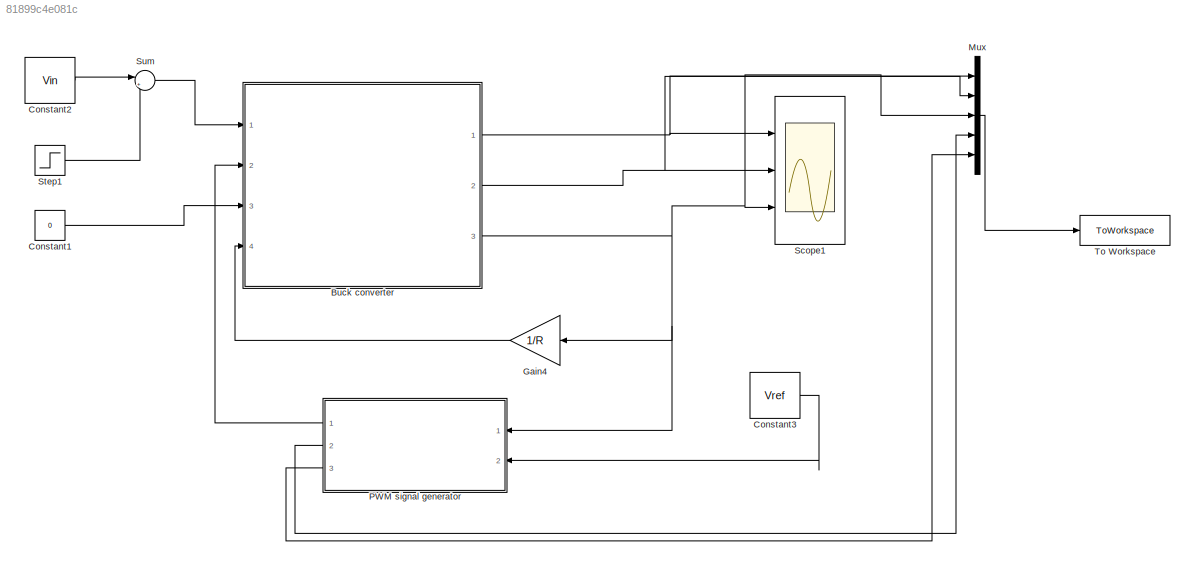
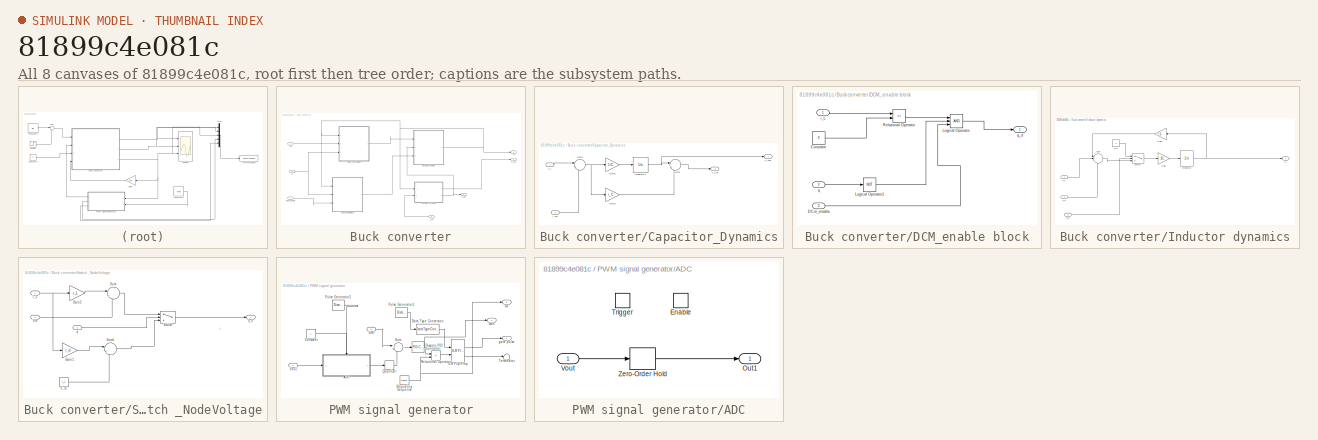
[diagram: thumbnail index - all 8 canvases of the model, root first then tree order]
MODEL slx_81899c4e081c
KIND model
CONFIG AbsTol = auto
CONFIG EnableMultiTasking = off
CONFIG FixedStep = auto
CONFIG MaxStep = 1e-6
CONFIG MinStep = auto
CONFIG RelTol = 1e-12
CONFIG SampleTimeConstraint = Unconstrained
CONFIG SolverName = ode23t
CONFIG StartTime = 0.0
CONFIG StopTime = t_sim
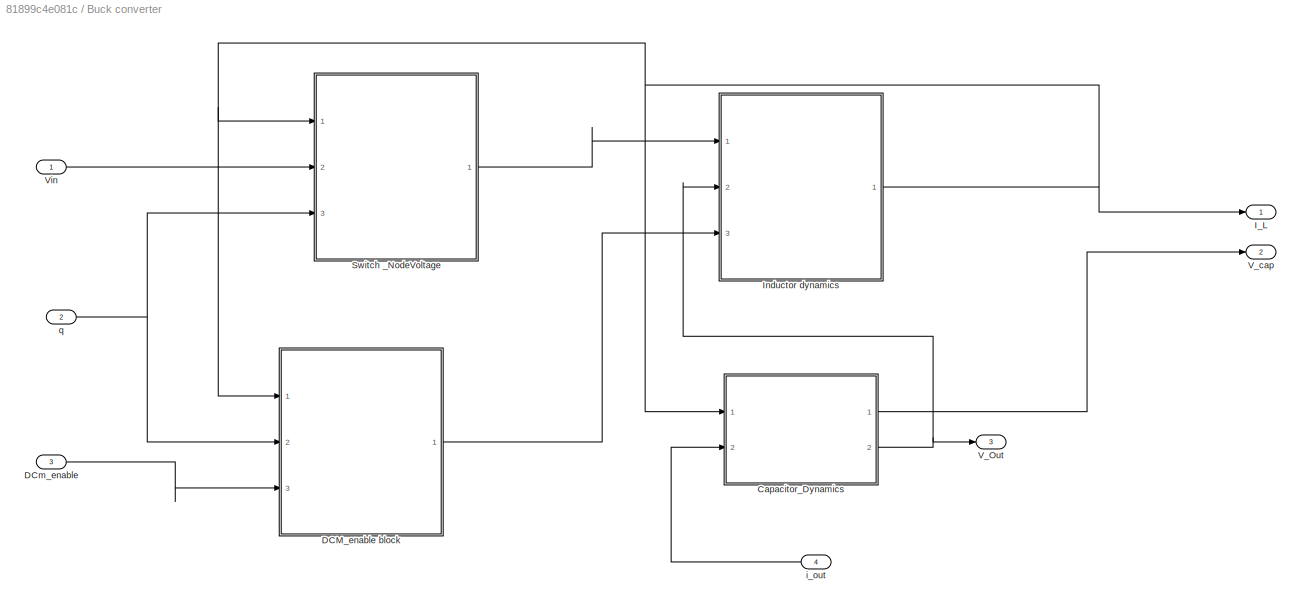
BLOCK [SubSystem] Buck converter
  Ports = [4, 3]
  RequestExecContextInheritance = off
BLOCK [SubSystem] Buck converter/Capacitor_Dynamics
  Ports = [2, 2]
  RequestExecContextInheritance = off
BLOCK [Gain] Buck converter/Capacitor_Dynamics/Gain2
  Gain = 1/C
BLOCK [Gain] Buck converter/Capacitor_Dynamics/Gain3
  Gain = r_C
BLOCK [Integrator] Buck converter/Capacitor_Dynamics/Integrator1
  InitialCondition = V_C_int
  Ports = [1, 1]
BLOCK [Sum] Buck converter/Capacitor_Dynamics/Sum1
  Inputs = |+-
  Ports = [2, 1]
BLOCK [Sum] Buck converter/Capacitor_Dynamics/Sum2
  Inputs = |++
  Ports = [2, 1]
BLOCK [Outport] Buck converter/Capacitor_Dynamics/V_Out
  Port = 2
BLOCK [Outport] Buck converter/Capacitor_Dynamics/V_cap
BLOCK [Inport] Buck converter/Capacitor_Dynamics/i_L
BLOCK [Inport] Buck converter/Capacitor_Dynamics/i_out
  NameLocation = top
  Port = 2
BLOCK [SubSystem] Buck converter/DCM_enable block
  Ports = [3, 1]
  RequestExecContextInheritance = off
BLOCK [Constant] Buck converter/DCM_enable block/Constant
  Value = 0
BLOCK [Inport] Buck converter/DCM_enable block/DCm_enable
  Port = 3
BLOCK [Logic] Buck converter/DCM_enable block/Logical Operator
  AllPortsSameDT = off
  Inputs = 3
  OutDataTypeStr = boolean
  Ports = [3, 1]
BLOCK [Logic] Buck converter/DCM_enable block/Logical Operator1
  AllPortsSameDT = off
  Inputs = 3
  Operator = NOT
  OutDataTypeStr = boolean
  Ports = [1, 1]
BLOCK [RelationalOperator] Buck converter/DCM_enable block/Relational Operator
  InputSameDT = off
  Operator = <=
  OutDataTypeStr = boolean
  Ports = [2, 1]
  RndMeth = Simplest
BLOCK [Inport] Buck converter/DCM_enable block/i_L
BLOCK [Inport] Buck converter/DCM_enable block/q
  Port = 2
BLOCK [Outport] Buck converter/DCM_enable block/q_d
BLOCK [Inport] Buck converter/DCm_enable
  Port = 3
BLOCK [Outport] Buck converter/I_L
BLOCK [SubSystem] Buck converter/Inductor dynamics
  Ports = [3, 1]
  RequestExecContextInheritance = off
BLOCK [Gain] Buck converter/Inductor dynamics/Gain
  Gain = 1/L
BLOCK [Gain] Buck converter/Inductor dynamics/Gain1
  Gain = r_L
  NameLocation = top
BLOCK [Outport] Buck converter/Inductor dynamics/I_L
BLOCK [Integrator] Buck converter/Inductor dynamics/Integrato
  InitialCondition = I_L_int
  Ports = [1, 1]
BLOCK [Sum] Buck converter/Inductor dynamics/Sum
  Inputs = |-+-
  Ports = [3, 1]
BLOCK [Switch] Buck converter/Inductor dynamics/Switch
  Criteria = u2 > Threshold
  InputSameDT = off
  SaturateOnIntegerOverflow = off
  Threshold = 0.5
BLOCK [Inport] Buck converter/Inductor dynamics/V_o
  Port = 2
BLOCK [Inport] Buck converter/Inductor dynamics/V_x
BLOCK [Constant] Buck converter/Inductor dynamics/V_x1
  Value = 0
BLOCK [Inport] Buck converter/Inductor dynamics/q_D
  Port = 3
BLOCK [SubSystem] Buck converter/Switch _NodeVoltage
  Ports = [3, 1]
  RequestExecContextInheritance = off
BLOCK [Gain] Buck converter/Switch _NodeVoltage/Gain1
  Gain = r_d
BLOCK [Gain] Buck converter/Switch _NodeVoltage/Gain2
  Gain = r_L
BLOCK [Sum] Buck converter/Switch _NodeVoltage/Sum
  Inputs = |-+
  Ports = [2, 1]
BLOCK [Sum] Buck converter/Switch _NodeVoltage/Sum1
  Inputs = |+-
  Ports = [2, 1]
BLOCK [Switch] Buck converter/Switch _NodeVoltage/Switch
  Criteria = u2 > Threshold
  InputSameDT = off
  SaturateOnIntegerOverflow = off
  Threshold = 0.5
BLOCK [Constant] Buck converter/Switch _NodeVoltage/V_x1
  Value = V_d
BLOCK [Inport] Buck converter/Switch _NodeVoltage/Vin
  Port = 2
BLOCK [Inport] Buck converter/Switch _NodeVoltage/i_L
BLOCK [Inport] Buck converter/Switch _NodeVoltage/q
  Port = 3
BLOCK [Outport] Buck converter/Switch _NodeVoltage/v_x
BLOCK [Outport] Buck converter/V_Out
  Port = 3
BLOCK [Outport] Buck converter/V_cap
  Port = 2
BLOCK [Inport] Buck converter/Vin
BLOCK [Inport] Buck converter/i_out
  Port = 4
BLOCK [Inport] Buck converter/q
  Port = 2
BLOCK [Constant] Constant1
  Value = 0
BLOCK [Constant] Constant2
  Value = Vin
BLOCK [Constant] Constant3
  Value = Vref
BLOCK [Gain] Gain4
  Gain = 1/R
  NameLocation = top
BLOCK [Mux] Mux
  DisplayOption = bar
  Inputs = 5
  Ports = [5, 1]
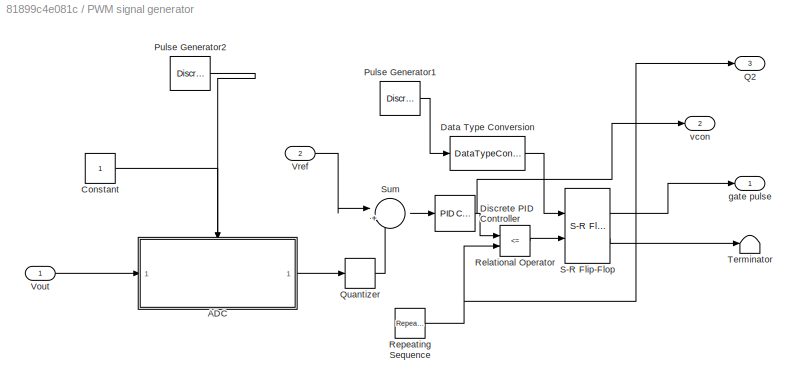
BLOCK [SubSystem] PWM signal generator
  Ports = [2, 3]
  RequestExecContextInheritance = off
BLOCK [SubSystem] PWM signal generator/ADC
  Ports = [1, 1, 1, 1]
  RequestExecContextInheritance = off
  TreatAsAtomicUnit = on
BLOCK [EnablePort] PWM signal generator/ADC/Enable
  Ports = []
BLOCK [Outport] PWM signal generator/ADC/Out1
BLOCK [TriggerPort] PWM signal generator/ADC/Trigger
  Ports = []
  StatesWhenEnabling = held
  VariantControl = (inherit)
BLOCK [Inport] PWM signal generator/ADC/Vout
BLOCK [ZeroOrderHold] PWM signal generator/ADC/Zero-Order Hold
  SampleTime = -1
BLOCK [Constant] PWM signal generator/Constant
BLOCK [DataTypeConversion] PWM signal generator/Data Type Conversion
  OutMax = [1]
  OutMin = [0]
  RndMeth = Floor
  SaturateOnIntegerOverflow = off
BLOCK [Reference] PWM signal generator/Discrete PID Controller  REF=slpidlib/PID Controller
  Ports = [1, 1]
  SourceBlock = slpidlib/PID Controller
  SourceProductBaseCode = SL
  SourceType = PID 1dof
BLOCK [DiscretePulseGenerator] PWM signal generator/Pulse Generator1
  Period = T
  Ports = [0, 1]
  PulseType = Time based
  PulseWidth = 50
BLOCK [DiscretePulseGenerator] PWM signal generator/Pulse Generator2
  Period = T
  Ports = [0, 1]
  PulseType = Time based
  PulseWidth = 50
BLOCK [Outport] PWM signal generator/Q2
  Port = 3
BLOCK [Quantizer] PWM signal generator/Quantizer
  QuantizationInterval = 0.001
BLOCK [RelationalOperator] PWM signal generator/Relational Operator
  InputSameDT = off
  Operator = <=
  OutDataTypeStr = boolean
  Ports = [2, 1]
  RndMeth = Simplest
BLOCK [Reference] PWM signal generator/Repeating Sequence  REF=simulink/Sources/Repeating
Sequence
  Ports = [0, 1]
  SourceBlock = simulink/Sources/Repeating\nSequence
  SourceProductBaseCode = SL
  SourceType = Repeating table
BLOCK [Reference] PWM signal generator/S-R Flip-Flop  REF=simulink_extras/Flip Flops/S-R
Flip-Flop
  Ports = [2, 2]
  SourceBlock = simulink_extras/Flip Flops/S-R\nFlip-Flop
  SourceProductBaseCode = SL
  SourceType = SRFlipFlop
BLOCK [Sum] PWM signal generator/Sum
  Inputs = |+-
  Ports = [2, 1]
BLOCK [Terminator] PWM signal generator/Terminator
BLOCK [Inport] PWM signal generator/Vout
BLOCK [Inport] PWM signal generator/Vref
  NameLocation = top
  Port = 2
BLOCK [Outport] PWM signal generator/gate pulse
BLOCK [Outport] PWM signal generator/vcon
  Port = 2
BLOCK [Scope] Scope1
  Floating = off
  NumInputPorts = 3
  Ports = [3]
  ScopeSpecificationString = Simulink.scopes.TimeScopeBlockCfg('CurrentConfiguration', extmgr.ConfigurationSet(extmgr.Configuration('Core','General UI',true),extmgr.Configuration('Core','Source UI',true),extmgr.Configuration('Sources','WiredSimulink',true,'DataLogging',true,'DataLoggingSaveFormat','StructureWithTime'),extmgr.Configuration('Visuals','Time Domain',true,'SerializedDisplays',{struct('MinYLimReal','-49.12881','Max...<+3376ch>
BLOCK [Step] Step1
  After = -4
  SampleTime = 0
  Time = 5
BLOCK [Sum] Sum
  Inputs = |++
  Ports = [2, 1]
BLOCK [ToWorkspace] To Workspace
  FixptAsFi = on
  MaxDataPoints = inf
  Ports = [1]
  SampleTime = -1
  SaveFormat = Structure With Time
  VariableName = buck_result
ANNOTATION Buck converter/Inductor dynamics: r
ANNOTATION Buck converter/Switch _NodeVoltage: r
LINE Buck converter/Capacitor_Dynamics/Gain2:1 -> Buck converter/Capacitor_Dynamics/Integrator1:1
LINE Buck converter/Capacitor_Dynamics/Gain3:1 -> Buck converter/Capacitor_Dynamics/Sum2:2
NET Buck converter/Capacitor_Dynamics/Integrator1:1 -> Buck converter/Capacitor_Dynamics/Sum2:1, Buck converter/Capacitor_Dynamics/V_cap:1
NET Buck converter/Capacitor_Dynamics/Sum1:1 -> Buck converter/Capacitor_Dynamics/Gain2:1, Buck converter/Capacitor_Dynamics/Gain3:1
LINE Buck converter/Capacitor_Dynamics/Sum2:1 -> Buck converter/Capacitor_Dynamics/V_Out:1
LINE Buck converter/Capacitor_Dynamics/i_L:1 -> Buck converter/Capacitor_Dynamics/Sum1:1
LINE Buck converter/Capacitor_Dynamics/i_out:1 -> Buck converter/Capacitor_Dynamics/Sum1:2
LINE Buck converter/Capacitor_Dynamics:1 -> Buck converter/V_cap:1
NET Buck converter/Capacitor_Dynamics:2 -> Buck converter/Inductor dynamics:2, Buck converter/V_Out:1
LINE Buck converter/DCM_enable block/Constant:1 -> Buck converter/DCM_enable block/Relational Operator:2
LINE Buck converter/DCM_enable block/DCm_enable:1 -> Buck converter/DCM_enable block/Logical Operator:3
LINE Buck converter/DCM_enable block/Logical Operator1:1 -> Buck converter/DCM_enable block/Logical Operator:2
LINE Buck converter/DCM_enable block/Logical Operator:1 -> Buck converter/DCM_enable block/q_d:1
LINE Buck converter/DCM_enable block/Relational Operator:1 -> Buck converter/DCM_enable block/Logical Operator:1
LINE Buck converter/DCM_enable block/i_L:1 -> Buck converter/DCM_enable block/Relational Operator:1
LINE Buck converter/DCM_enable block/q:1 -> Buck converter/DCM_enable block/Logical Operator1:1
LINE Buck converter/DCM_enable block:1 -> Buck converter/Inductor dynamics:3
LINE Buck converter/DCm_enable:1 -> Buck converter/DCM_enable block:3
LINE Buck converter/Inductor dynamics/Gain1:1 -> Buck converter/Inductor dynamics/Sum:1
LINE Buck converter/Inductor dynamics/Gain:1 -> Buck converter/Inductor dynamics/Integrato:1
NET Buck converter/Inductor dynamics/Integrato:1 -> Buck converter/Inductor dynamics/Gain1:1, Buck converter/Inductor dynamics/I_L:1
LINE Buck converter/Inductor dynamics/Sum:1 -> Buck converter/Inductor dynamics/Switch:3
LINE Buck converter/Inductor dynamics/Switch:1 -> Buck converter/Inductor dynamics/Gain:1
LINE Buck converter/Inductor dynamics/V_o:1 -> Buck converter/Inductor dynamics/Sum:3
LINE Buck converter/Inductor dynamics/V_x1:1 -> Buck converter/Inductor dynamics/Switch:1
LINE Buck converter/Inductor dynamics/V_x:1 -> Buck converter/Inductor dynamics/Sum:2
LINE Buck converter/Inductor dynamics/q_D:1 -> Buck converter/Inductor dynamics/Switch:2
NET Buck converter/Inductor dynamics:1 -> Buck converter/Capacitor_Dynamics:1, Buck converter/DCM_enable block:1, Buck converter/I_L:1, Buck converter/Switch _NodeVoltage:1
LINE Buck converter/Switch _NodeVoltage/Gain1:1 -> Buck converter/Switch _NodeVoltage/Sum1:1
LINE Buck converter/Switch _NodeVoltage/Gain2:1 -> Buck converter/Switch _NodeVoltage/Sum:1
LINE Buck converter/Switch _NodeVoltage/Sum1:1 -> Buck converter/Switch _NodeVoltage/Switch:3
LINE Buck converter/Switch _NodeVoltage/Sum:1 -> Buck converter/Switch _NodeVoltage/Switch:1
LINE Buck converter/Switch _NodeVoltage/Switch:1 -> Buck converter/Switch _NodeVoltage/v_x:1
LINE Buck converter/Switch _NodeVoltage/V_x1:1 -> Buck converter/Switch _NodeVoltage/Sum1:2
LINE Buck converter/Switch _NodeVoltage/Vin:1 -> Buck converter/Switch _NodeVoltage/Sum:2
NET Buck converter/Switch _NodeVoltage/i_L:1 -> Buck converter/Switch _NodeVoltage/Gain1:1, Buck converter/Switch _NodeVoltage/Gain2:1
LINE Buck converter/Switch _NodeVoltage/q:1 -> Buck converter/Switch _NodeVoltage/Switch:2
LINE Buck converter/Switch _NodeVoltage:1 -> Buck converter/Inductor dynamics:1
LINE Buck converter/Vin:1 -> Buck converter/Switch _NodeVoltage:2
LINE Buck converter/i_out:1 -> Buck converter/Capacitor_Dynamics:2
NET Buck converter/q:1 -> Buck converter/DCM_enable block:2, Buck converter/Switch _NodeVoltage:3
NET Buck converter:1 -> Mux:1, Scope1:1
NET Buck converter:2 -> Mux:2, Scope1:2
NET Buck converter:3 -> Gain4:1, Mux:3, PWM signal generator:1, Scope1:3
LINE Constant1:1 -> Buck converter:3
LINE Constant2:1 -> Sum:1
LINE Constant3:1 -> PWM signal generator:2
LINE Gain4:1 -> Buck converter:4
LINE Mux:1 -> To Workspace:1
LINE PWM signal generator/ADC/Vout:1 -> PWM signal generator/ADC/Zero-Order Hold:1
LINE PWM signal generator/ADC/Zero-Order Hold:1 -> PWM signal generator/ADC/Out1:1
LINE PWM signal generator/ADC:1 -> PWM signal generator/Quantizer:1
LINE PWM signal generator/Constant:1 -> PWM signal generator/ADC:enable
LINE PWM signal generator/Data Type Conversion:1 -> PWM signal generator/S-R Flip-Flop:1
NET PWM signal generator/Discrete PID Controller:1 -> PWM signal generator/Relational Operator:1, PWM signal generator/vcon:1
LINE PWM signal generator/Pulse Generator1:1 -> PWM signal generator/Data Type Conversion:1
LINE PWM signal generator/Pulse Generator2:1 -> PWM signal generator/ADC:trigger
LINE PWM signal generator/Quantizer:1 -> PWM signal generator/Sum:2
LINE PWM signal generator/Relational Operator:1 -> PWM signal generator/S-R Flip-Flop:2
NET PWM signal generator/Repeating Sequence:1 -> PWM signal generator/Q2:1, PWM signal generator/Relational Operator:2
LINE PWM signal generator/S-R Flip-Flop:1 -> PWM signal generator/gate pulse:1
LINE PWM signal generator/S-R Flip-Flop:2 -> PWM signal generator/Terminator:1
LINE PWM signal generator/Sum:1 -> PWM signal generator/Discrete PID Controller:1
LINE PWM signal generator/Vout:1 -> PWM signal generator/ADC:1
LINE PWM signal generator/Vref:1 -> PWM signal generator/Sum:1
LINE PWM signal generator:1 -> Buck converter:2
LINE PWM signal generator:2 -> Mux:4
LINE PWM signal generator:3 -> Mux:5
LINE Step1:1 -> Sum:2
LINE Sum:1 -> Buck converter:1
note: NET lines group one-source signal fan-out (src -> all destinations, sorted); 1:1 wires keep LINE
